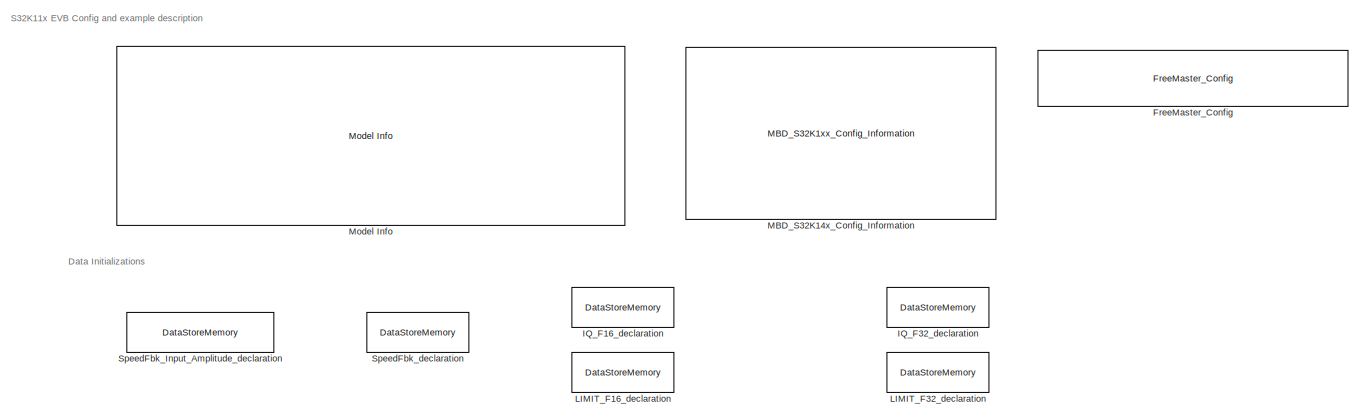
[diagram: root canvas - part 1/5, top center region]
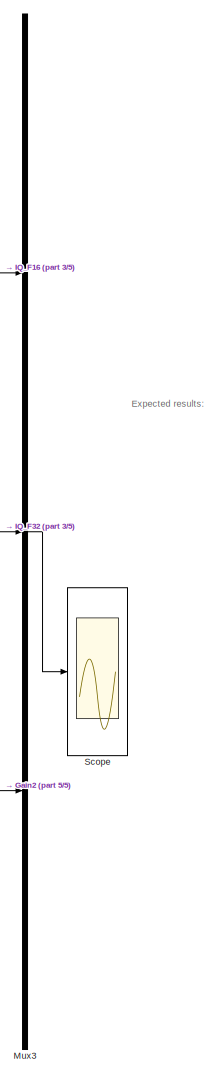
[diagram: root canvas - part 2/5, middle right region]
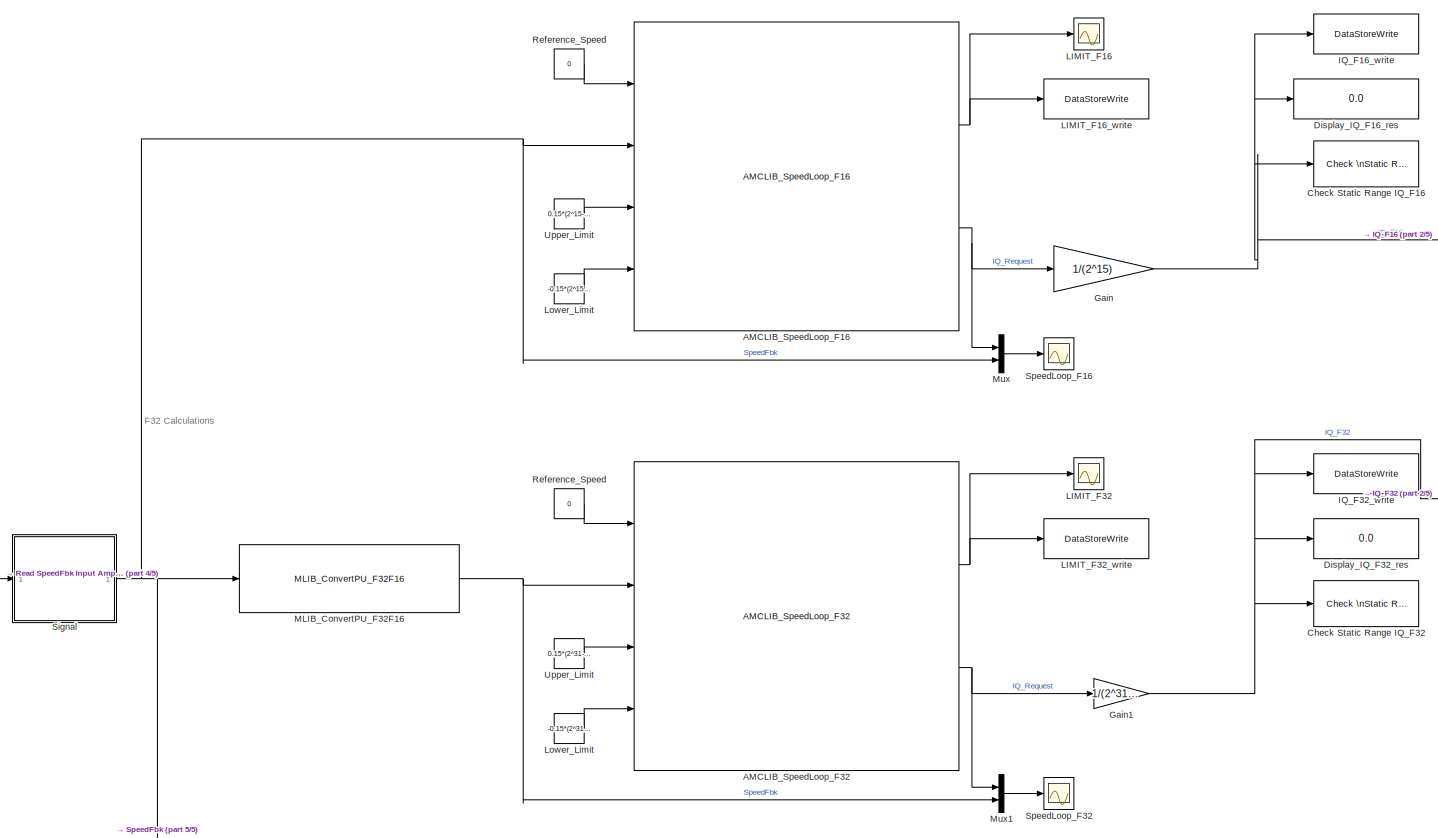
[diagram: root canvas - part 3/5, full width, middle band]
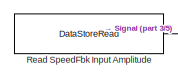
[diagram: root canvas - part 4/5, bottom left region]
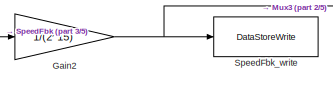
[diagram: root canvas - part 5/5, bottom center region]
MODEL ammclib_amclib_speed_loop_s32k11x
KIND model
CONFIG InitFcn = mbd_s32k_consistency_checks(bdroot(gcs));
BLOCK [Reference] AMCLIB_SpeedLoop_F16  REF=ammclib_bam_s32k11x/AMCLIB/bam_f16/AMCLIB_SpeedLoop_F16  (lib defined in mdl_5e542557caf3)
  Ports = [4, 2]
  SID = 641
  SourceBlock = ammclib_bam_s32k11x/AMCLIB/bam_f16/AMCLIB_SpeedLoop_F16
  SourceType = AMCLIB_SpeedLoop_F16
  f16IntegGainQ = 0.0009*(2^15-1)
  f16PropGainQ = 0.006*(2^15-1)
  f32RampDown = 20
  f32RampUp = 20
  s16IntegGainShiftQ = 0
  s16PropGainShiftQ = 0
  u16NSamplesW = 3
BLOCK [Reference] AMCLIB_SpeedLoop_F32  REF=ammclib_bam_s32k11x/AMCLIB/bam_f32/AMCLIB_SpeedLoop_F32  (lib defined in mdl_5e542557caf3)
  Ports = [4, 2]
  SID = 677
  SourceBlock = ammclib_bam_s32k11x/AMCLIB/bam_f32/AMCLIB_SpeedLoop_F32
  SourceType = AMCLIB_SpeedLoop_F32
  f32IntegGainQ = 0.009*(2^31-1)
  f32PropGainQ = 0.006*(2^31-1)
  f32RampDown = 20
  f32RampUp = 20
  s16IntegGainShiftQ = 0
  s16PropGainShiftQ = 0
  u16NSamplesW = 3
BLOCK [Reference] Check Static Range IQ_F16   REF=simulink/Model\nVerification/Check \nStatic Range
  Description = -0.15*(2^15-1) <= u <= 0.15*(2^15-1)
  Ports = [1]
  SID = 585
  SourceBlock = simulink/Model\nVerification/Check \nStatic Range
  SourceProductBaseCode = SL
  SourceProductName = Simulink
  SourceType = Checks_SRange
  enabled = on
  export = off
  icon = graphic
  max = 0.15*(2^15-1)
  max_included = on
  min = -0.15*(2^15-1)
  min_included = on
  stopWhenAssertionFail = on
BLOCK [Reference] Check Static Range IQ_F32  REF=simulink/Model\nVerification/Check \nStatic Range
  Description = -0.15*(2^31-1) <= u <= 0.15*(2^31-1)
  Ports = [1]
  SID = 664
  SourceBlock = simulink/Model\nVerification/Check \nStatic Range
  SourceProductBaseCode = SL
  SourceProductName = Simulink
  SourceType = Checks_SRange
  enabled = on
  export = off
  icon = graphic
  max = 0.15*(2^31-1)
  max_included = on
  min = -0.15*(2^31-1)
  min_included = on
  stopWhenAssertionFail = on
BLOCK [Display] Display_IQ_F16_res
  Decimation = 1
  Format = long
  Ports = [1]
  SID = 579
BLOCK [Display] Display_IQ_F32_res
  Decimation = 1
  Format = long
  Ports = [1]
  SID = 665
BLOCK [Reference] FreeMaster_Config  REF=mbd_s32k1xx_ec_toolbox/Utility Blocks/FreeMaster_Config
  Ports = []
  SID = 564
  SourceBlock = mbd_s32k1xx_ec_toolbox/Utility Blocks/FreeMaster_Config
  SourceType = fm_s32k_config
  baudrate = 19200
  comm_buffer_size = 255
  comm_buffer_size_auto = on
  comm_rqueue_size = 32
  comm_rqueue_size_default = on
  interface = LPUART0
  isr_prio = 3
  max_rec_vars = 8
  max_scope_vars = 8
  mode = Short Interrupt
  rec_buff_size = 1024
  rec_timebase = 0
  rec_timebase_unit = milliseconds
  rxd = PTB0: [LPUART0_RX | Receive]
  show_adv_opts = on
  txd = PTB1: [LPUART0_TX | Transmit]
  use_recorder = on
  use_scope = on
BLOCK [Gain] Gain
  Gain = 1/(2^15)
  OutDataTypeStr = Inherit: Inherit via back propagation
  ParamDataTypeStr = Inherit: Inherit via internal rule
  SID = 703
  SaturateOnIntegerOverflow = off
BLOCK [Gain] Gain1
  Gain = 1/(2^31-1)
  OutDataTypeStr = Inherit: Inherit via back propagation
  ParamDataTypeStr = Inherit: Inherit via internal rule
  SID = 704
  SaturateOnIntegerOverflow = off
BLOCK [Gain] Gain2
  Gain = 1/(2^15)
  OutDataTypeStr = Inherit: Inherit via back propagation
  ParamDataTypeStr = Inherit: Inherit via internal rule
  SID = 705
  SaturateOnIntegerOverflow = off
BLOCK [DataStoreMemory] IQ_F16_declaration
  DataStoreName = IQ_F16
  OutDataTypeStr = single
  Priority = 2
  ReadBeforeWriteMsg = warning
  SID = 580
  ShowAdditionalParam = off
  WriteAfterReadMsg = warning
  WriteAfterWriteMsg = warning
BLOCK [DataStoreWrite] IQ_F16_write
  DataStoreName = IQ_F16
  Ports = [1]
  SID = 581
BLOCK [DataStoreMemory] IQ_F32_declaration
  DataStoreName = IQ_F32
  OutDataTypeStr = single
  Priority = 2
  ReadBeforeWriteMsg = warning
  SID = 679
  ShowAdditionalParam = off
  WriteAfterReadMsg = warning
  WriteAfterWriteMsg = warning
BLOCK [DataStoreWrite] IQ_F32_write
  DataStoreName = IQ_F32
  Ports = [1]
  SID = 666
BLOCK [Scope] LIMIT_F16
  NumInputPorts = 1
  Ports = [1]
  SID = 662
  ScopeSpecificationString = C++SS(StrPVP('SaveName','ScopeData1'),StrPVP('LimitDataPoints','on'),StrPVP('DataFormat','Array'),StrPVP('Decimation','1'),StrPVP('BlockParamSampleInput','off'))
BLOCK [DataStoreMemory] LIMIT_F16_declaration
  DataStoreName = LIMIT_F16_res
  OutDataTypeStr = uint16
  Priority = 3
  ReadBeforeWriteMsg = warning
  SID = 588
  ShowAdditionalParam = off
  WriteAfterReadMsg = warning
  WriteAfterWriteMsg = warning
BLOCK [DataStoreWrite] LIMIT_F16_write
  DataStoreName = LIMIT_F16_res
  Ports = [1]
  SID = 659
BLOCK [Scope] LIMIT_F32
  NumInputPorts = 1
  Ports = [1]
  SID = 667
  ScopeSpecificationString = Simulink.scopes.TimeScopeBlockCfg('CurrentConfiguration', extmgr.ConfigurationSet(extmgr.Configuration('Core','General UI',true),extmgr.Configuration('Core','Source UI',true),extmgr.Configuration('Sources','WiredSimulink',true,'DataLoggingVariableName','ScopeData2'),extmgr.Configuration('Visuals','Time Domain',true,'SerializedDisplays',{struct('MinYLimReal','-0.125','MaxYLimReal','1.125','YLabelRe...<+1369ch>
BLOCK [DataStoreMemory] LIMIT_F32_declaration
  DataStoreName = LIMIT_F32_res
  OutDataTypeStr = uint16
  Priority = 3
  ReadBeforeWriteMsg = warning
  SID = 680
  ShowAdditionalParam = off
  WriteAfterReadMsg = warning
  WriteAfterWriteMsg = warning
BLOCK [DataStoreWrite] LIMIT_F32_write
  DataStoreName = LIMIT_F32_res
  Ports = [1]
  SID = 668
BLOCK [Constant] Lower_Limit
  OutDataTypeStr = Inherit: Inherit via back propagation
  SID = 655
  Value = -0.15*(2^15-1)
BLOCK [Constant] Lower_Limit 
  OutDataTypeStr = Inherit: Inherit via back propagation
  SID = 669
  Value = -0.15*(2^31-1)
BLOCK [Reference] MBD_S32K14x_Config_Information  REF=mbd_s32k1xx_ec_toolbox/MBD_S32K1xx_Config_Information
  ADC_PcrCheckEnDis = on
  AMMCLIB_PcrCheckEnDis = on
  CMP_PcrCheckEnDis = on
  CSEc_PcrCheckEnDis = on
  ConfigParams_PcrCheckEnDis = on
  FM_PcrCheckEnDis = on
  FTM_Dual_Edge_Inputs_PcrCheckEnDis = on
  FTM_Hall_Sensor_Inputs_PcrCheckEnDis = on
  FTM_Input_Edge_Inputs_PcrCheckEnDis = on
  FTM_PWM_PcrCheckEnDis = on
  FTM_Quadrature_Inputs_PcrCheckEnDis = on
  FlexCAN_PcrCheckEnDis = on
  FlexIO_PcrCheckEnDis = on
  GPIO_InputPcrCheckEnDis = on
  GPIO_OutputPcrCheckEnDis = on
  LIN_PcrCheckEnDis = on
  LPI2C_PcrCheckEnDis = on
  LPSPI_PcrCheckEnDis = on
  LPTMR_PcrCheckEnDis = on
  LPUART_PcrCheckEnDis = on
  ModelRef_PcrCheckEnDis = on
  PDB0_PcrCheckEnDis = on
  PIT_PcrCheckEnDis = on
  Ports = []
  Priority = 0
  Profile_PcrCheckEnDis = on
  RTC_PcrCheckEnDis = on
  SBC_PcrCheckEnDis = on
  SID = 1
  SourceBlock = mbd_s32k1xx_ec_toolbox/MBD_S32K1xx_Config_Information
  SourceType = MBDTBX_EC_S32K
  WDOG_PcrCheckEnDis = on
  config_params = []
  disp_str = Target : S32K142-16KB_SRAM\nPackage : 100-pin\nSystem clock : 80 MHz\nXTAL clock : External 8 MHz\nCompiler : GCC\nTarget Type : FLASH\nDownload Code after build : (OpenSDA: E)\nStep Tick Interrupt Priority : 15
  ds_import_enable = on
  eDMA_PcrCheckEnDis = on
  gcc_target_assemble_opts = -mcpu=cortex-m0plus -mthumb -g
  gcc_target_compile_opts = -mcpu=cortex-m0plus -mthumb -O1 -g -gstrict-dwarf
  gcc_target_default_lcf = on
  gcc_target_link_opts = -mcpu=cortex-m0plus -mthumb
  gcc_target_user_lcf = S32K116_17_flash.ld
  ghs_target_assemble_opts = -mcpu=cortexm0plus -mthumb -fsoft --gnu_asm
  ghs_target_compile_opts = -mcpu=cortexm0plus -mthumb -fsoft -Ogeneral -Wundef -Wimplicit-int -Wshadow -Wtrigraphs --no_commons --gnu_asm -gnu99 -gdwarf-2 -G
  ghs_target_default_lcf = off
  ghs_target_link_opts = -mcpu=cortexm0plus -mthumb -fsoft
  ghs_target_user_lcf = S32K116_17_flash.ld
  iar_target_assemble_opts = --thumb
  iar_target_compile_opts = --thumb -Ol -e --debug --dlib_config normal
  iar_target_default_lcf = off
  iar_target_link_opts = --no_exceptions --vfe --inline
  iar_target_user_lcf = S32K116_17_flash.icf
  mbdt_ver = 0
  mcu_steptick_prio = 0
  mcu_steptick_timer = LPIT Channel 0
  mcu_system_clock_freq = 40
  mcu_target_name = S32K116
  mcu_target_package = 48-LQFP
  mcu_target_sram_size = 17KB
  mcu_xtal_freq = External 40
  pil_download_enable = off
  pil_download_rate = 57600
  pil_opensda_drive = Custom
  pil_opensda_drive_custom = D
  pil_uart_instance = 0
  pil_uart_rx = PTA2: [LPUART0_RX | Receive]
  pil_uart_tx = PTA3: [LPUART0_TX | Transmit]
  rbl_com_port = Custom
  rbl_com_port_custom = COM1
  rbl_download_enable = on
  rbl_download_interface = OpenSDA
  rbl_restart_request = off
  rbl_start_delay = 5000000
  target_compiler = GCC
  target_memory = FLASH
BLOCK [Reference] MLIB_ConvertPU_F32F16  REF=ammclib_bam_s32k11x/MLIB/bam_f32/MLIB_ConvertPU_F32F16  (lib defined in mdl_5e542557caf3)
  Ports = [1, 1]
  SID = 676
  SourceBlock = ammclib_bam_s32k11x/MLIB/bam_f32/MLIB_ConvertPU_F32F16
  SourceType = MLIB_ConvertPU_F32
BLOCK [Reference] Model Info  REF=simulink/Model-Wide\nUtilities/Model Info
  DisplayStringWithTags = Model Name: %<ModelName>\n\nDescription: %<Description>
  Frame = off
  HorizontalTextAlignment = Left
  LeftAlignmentValue = 0.02
  MaskDisplayString = Model Name: ammclib_amclib_speed_loop_s32k11x\\n\\nDescription: This model tests the AMMCLIB AMCLIB Speed Loop blocks\\n\\nValidation:\\n- Run the model in Simulation and compare the Inputs vs Outputs results.\\n- Open Freemaster (ammclib_amclib_speed_loop_s32k11x.pmp) and compare the HW results against the Simulated ones
  Ports = []
  SID = 524
  SourceBlock = simulink/Model-Wide\nUtilities/Model Info
  SourceProductBaseCode = SL
  SourceProductName = Simulink
  SourceType = CMBlock
BLOCK [Mux] Mux
  DisplayOption = bar
  Inputs = 2
  Ports = [2, 1]
  SID = 661
BLOCK [Mux] Mux1
  DisplayOption = bar
  Inputs = 2
  Ports = [2, 1]
  SID = 671
BLOCK [Mux] Mux3
  DisplayOption = bar
  Inputs = 3
  Ports = [3, 1]
  SID = 699
BLOCK [DataStoreRead] Read SpeedFbk Input Amplitude
  DataStoreName = SpeedFbk_Input_Amplitude
  Ports = [0, 1]
  SID = 651
BLOCK [Constant] Reference_Speed
  OutDataTypeStr = Inherit: Inherit via back propagation
  SID = 643
  Value = 0
BLOCK [Constant] Reference_Speed 
  OutDataTypeStr = Inherit: Inherit via back propagation
  SID = 672
  Value = 0
BLOCK [Scope] Scope
  NumInputPorts = 1
  Ports = [1]
  SID = 701
  ScopeSpecificationString = Simulink.scopes.TimeScopeBlockCfg('CurrentConfiguration', extmgr.ConfigurationSet(extmgr.Configuration('Core','General UI',true),extmgr.Configuration('Core','Source UI',true),extmgr.Configuration('Sources','WiredSimulink',true,'DataLoggingVariableName','ScopeData6'),extmgr.Configuration('Visuals','Time Domain',true,'SerializedDisplays',{struct('MinYLimReal','-0.3125','MaxYLimReal','0.3125','YLabel...<+1774ch>
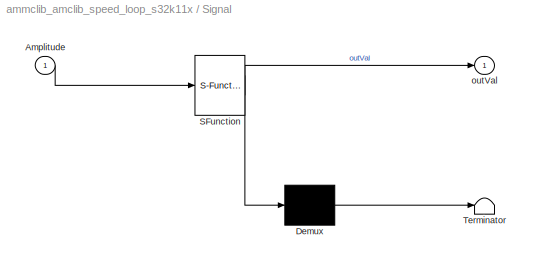
BLOCK [SubSystem] Signal
  ErrorFcn = Stateflow.Translate.translate
  PermitHierarchicalResolution = ExplicitOnly
  Ports = [1, 1]
  RequestExecContextInheritance = off
  SFBlockType = Chart
  SID = 650
  TreatAsAtomicUnit = on
  Variant = off
BLOCK [Demux] Signal/ Demux 
  Outputs = 1
  Ports = [1, 1]
  SID = 650::32
BLOCK [S-Function] Signal/ SFunction 
  EnableBusSupport = on
  FunctionName = sf_sfun
  PortCounts = [1 2]
  Ports = [1, 2]
  SFcnIsStateOwnerBlock = off
  SFunctionDeploymentMode = off
  SID = 650::31
  Tag = Stateflow S-Function ammclib_amclib_speed_loop_s32k11x 1
BLOCK [Terminator] Signal/ Terminator 
  SID = 650::33
BLOCK [Inport] Signal/Amplitude
  IconDisplay = Port number
  SID = 650::30
BLOCK [Outport] Signal/outVal
  IconDisplay = Port number
  SID = 650::5
BLOCK [DataStoreMemory] SpeedFbk_Input_Amplitude_declaration
  DataStoreName = SpeedFbk_Input_Amplitude
  InitialValue = 0.25*(2^15-1)
  OutDataTypeStr = int16
  OutMax = 32767
  OutMin = -32768
  Priority = 1
  SID = 648
  ShowAdditionalParam = off
  WriteAfterReadMsg = warning
  WriteAfterWriteMsg = warning
BLOCK [DataStoreMemory] SpeedFbk_declaration
  DataStoreName = SpeedFbk
  OutDataTypeStr = single
  OutMax = 1
  OutMin = -1
  Priority = 1
  SID = 649
  ShowAdditionalParam = off
  WriteAfterReadMsg = warning
  WriteAfterWriteMsg = warning
BLOCK [DataStoreWrite] SpeedFbk_write
  DataStoreName = SpeedFbk
  Ports = [1]
  SID = 707
BLOCK [Scope] SpeedLoop_F16
  NumInputPorts = 1
  Ports = [1]
  SID = 660
  ScopeSpecificationString = Simulink.scopes.TimeScopeBlockCfg('CurrentConfiguration', extmgr.ConfigurationSet(extmgr.Configuration('Core','General UI',true),extmgr.Configuration('Core','Source UI',true),extmgr.Configuration('Sources','WiredSimulink',true),extmgr.Configuration('Visuals','Time Domain',true,'SerializedDisplays',{struct('MinYLimReal','-10240.00000','MaxYLimReal','10240.00000','YLabelReal','','MinYLimMag','   0.0...<+1369ch>
BLOCK [Scope] SpeedLoop_F32
  NumInputPorts = 1
  Ports = [1]
  SID = 673
  ScopeSpecificationString = Simulink.scopes.TimeScopeBlockCfg('CurrentConfiguration', extmgr.ConfigurationSet(extmgr.Configuration('Core','General UI',true),extmgr.Configuration('Core','Source UI',true),extmgr.Configuration('Sources','WiredSimulink',true,'DataLoggingVariableName','ScopeData3'),extmgr.Configuration('Visuals','Time Domain',true,'SerializedDisplays',{struct('MinYLimReal','-671088640.00000','MaxYLimReal','671088...<+1440ch>
BLOCK [Constant] Upper_Limit
  OutDataTypeStr = Inherit: Inherit via back propagation
  SID = 644
  Value = 0.15*(2^15-1)
BLOCK [Constant] Upper_Limit 
  OutDataTypeStr = Inherit: Inherit via back propagation
  SID = 674
  Value = 0.15*(2^31-1)
ANNOTATION (root): \n \n Expected results: \n
ANNOTATION (root): Data Initializations
ANNOTATION (root): F32 Calculations
ANNOTATION (root): S32K11x EVB Config and example description
NET AMCLIB_SpeedLoop_F16:1 -> LIMIT_F16:1, LIMIT_F16_write:1
NET AMCLIB_SpeedLoop_F16:2 -> Gain:1, Mux:1
NET AMCLIB_SpeedLoop_F32:1 -> LIMIT_F32:1, LIMIT_F32_write:1
NET AMCLIB_SpeedLoop_F32:2 -> Gain1:1, Mux1:1
NET Gain1:1 -> Check Static Range IQ_F32:1, Display_IQ_F32_res:1, IQ_F32_write:1, Mux3:2
NET Gain2:1 -> Mux3:3, SpeedFbk_write:1
NET Gain:1 -> Check Static Range IQ_F16 :1, Display_IQ_F16_res:1, IQ_F16_write:1, Mux3:1
LINE Lower_Limit :1 -> AMCLIB_SpeedLoop_F32:4
LINE Lower_Limit:1 -> AMCLIB_SpeedLoop_F16:4
NET MLIB_ConvertPU_F32F16:1 -> AMCLIB_SpeedLoop_F32:2, Mux1:2
LINE Mux1:1 -> SpeedLoop_F32:1
LINE Mux3:1 -> Scope:1
LINE Mux:1 -> SpeedLoop_F16:1
LINE Read SpeedFbk Input Amplitude:1 -> Signal:1
LINE Reference_Speed :1 -> AMCLIB_SpeedLoop_F32:1
LINE Reference_Speed:1 -> AMCLIB_SpeedLoop_F16:1
LINE Signal/ Demux :1 -> Signal/ Terminator :1
LINE Signal/ SFunction :1 -> Signal/ Demux :1
LINE Signal/ SFunction :2 -> Signal/outVal:1
LINE Signal/Amplitude:1 -> Signal/ SFunction :1
NET Signal:1 -> AMCLIB_SpeedLoop_F16:2, Gain2:1, MLIB_ConvertPU_F32F16:1, Mux:2
LINE Upper_Limit :1 -> AMCLIB_SpeedLoop_F32:3
LINE Upper_Limit:1 -> AMCLIB_SpeedLoop_F16:3
note: NET lines group one-source signal fan-out (src -> all destinations, sorted); 1:1 wires keep LINE
CHART Signal states=2 transitions=3
  STATE_LABEL 'A\\ndu:\\noutVal = Amplitude;\\ncntr=cntr+1;'
  STATE_LABEL 'A1\\ndu:\\noutVal = -Amplitude;\\ncntr=cntr-1;'
